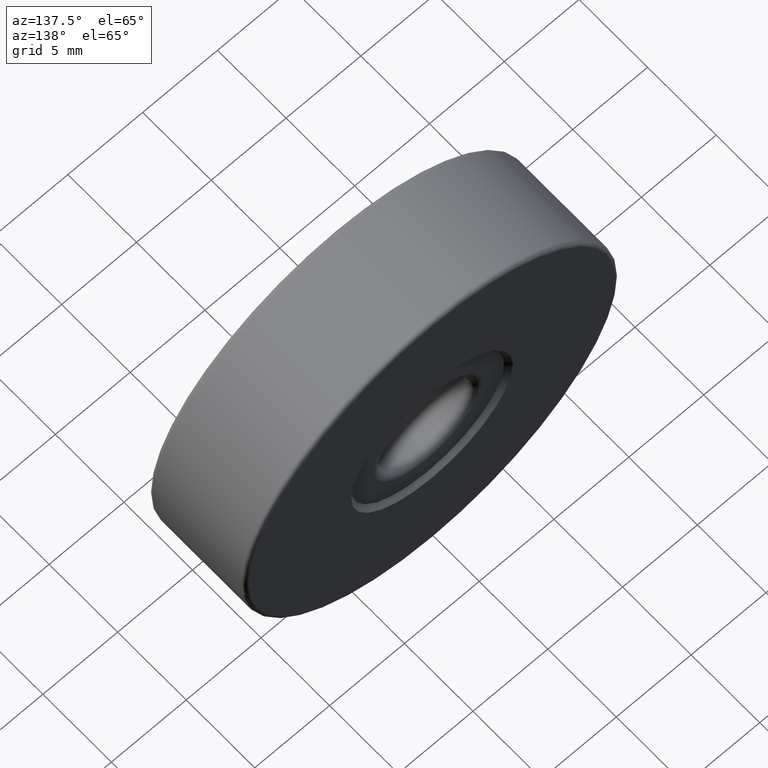
[diagram: clean part render]
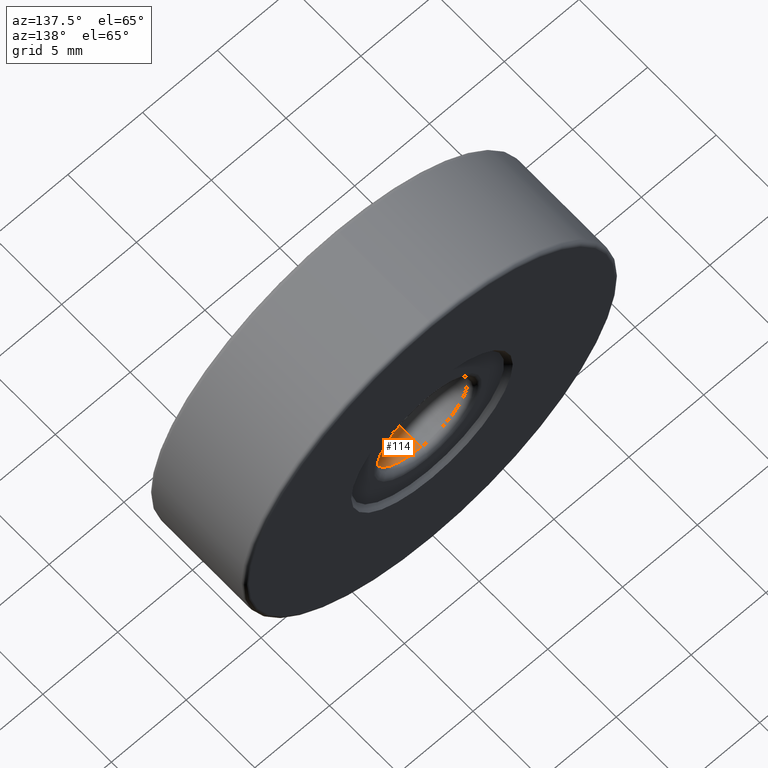
[diagram: same view with one face highlighted and labeled with its STEP entity id]
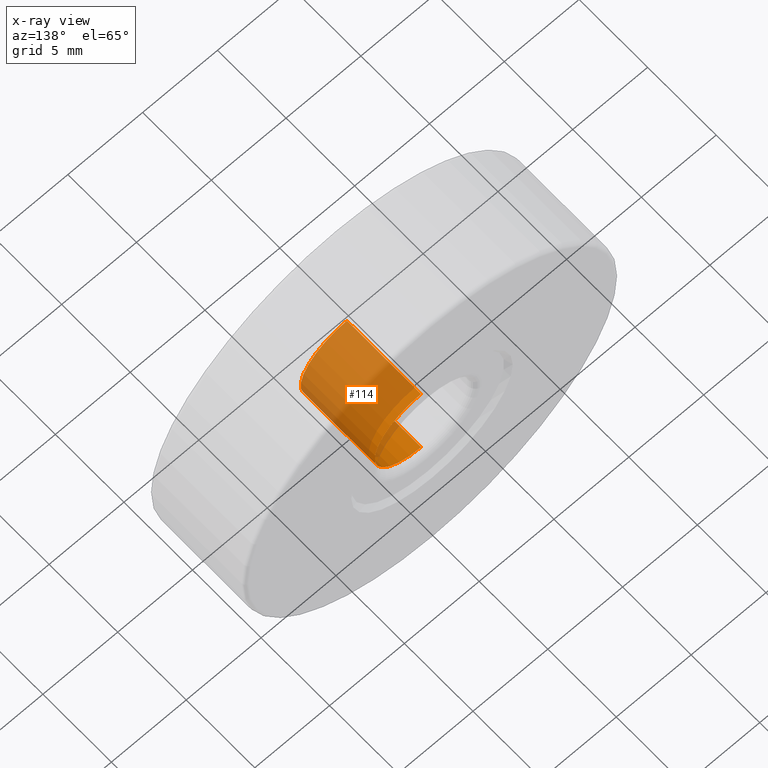
[diagram: x-ray of the same camera — body ghosted, the highlighted face saturated]
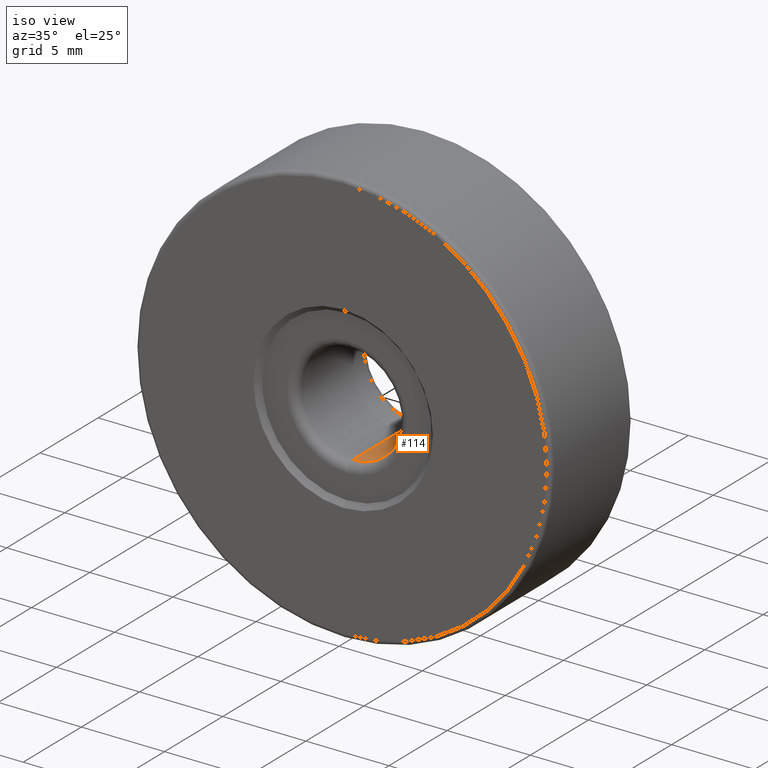
[diagram: same view with one face highlighted and labeled with its STEP entity id]
A machine part, auxiliary view. The second image highlights one B-rep face of the part: STEP entity #114.
The next image is the same camera in x-ray: the body ghosted, the highlighted face saturated — about 83% of this face is hidden behind the body in this view.
A second angle (iso view) of the same face is appended — the face is thin or edge-on in the first view.
In plain terms, the highlighted cylindrical surface (partial cylindrical patch) has radius 3.1 mm, axis along (-0, 1, -0).
Its self-contained STEP definition (entity closure, byte-faithful):
#30 = EDGE_CURVE ( 'NONE', #132, #259, #220, .T. ) ;
#35 = DIRECTION ( 'NONE',  ( 0.0000000000000000000, 1.000000000000000000, 0.0000000000000000000 ) ) ;
#52 = EDGE_CURVE ( 'NONE', #313, #259, #551, .T. ) ;
#75 = ORIENTED_EDGE ( 'NONE', *, *, #52, .T. ) ;
#114 = ADVANCED_FACE ( 'NONE', ( #146 ), #290, .F. ) ;
#125 = DIRECTION ( 'NONE',  ( 0.0000000000000000000, -1.000000000000000000, 0.0000000000000000000 ) ) ;
#132 = VERTEX_POINT ( 'NONE', #280 ) ;
#136 = AXIS2_PLACEMENT_3D ( 'NONE', #598, #35, #507 ) ;
#146 = FACE_OUTER_BOUND ( 'NONE', #165, .T. ) ;
#165 = EDGE_LOOP ( 'NONE', ( #204, #393, #587, #75 ) ) ;
#168 = CARTESIAN_POINT ( 'NONE',  ( -4.682026255059964726, -5.094975976998274980, 28.10000000000000142 ) ) ;
#180 = VECTOR ( 'NONE', #453, 1000.000000000000000 ) ;
#201 = CARTESIAN_POINT ( 'NONE',  ( -4.682026255059964726, -4.294975976998275158, 28.10000000000000142 ) ) ;
#204 = ORIENTED_EDGE ( 'NONE', *, *, #30, .F. ) ;
#220 = LINE ( 'NONE', #550, #394 ) ;
#228 = DIRECTION ( 'NONE',  ( -0.0000000000000000000, 1.000000000000000000, -0.0000000000000000000 ) ) ;
#259 = VERTEX_POINT ( 'NONE', #448 ) ;
#271 = VERTEX_POINT ( 'NONE', #201 ) ;
#278 = AXIS2_PLACEMENT_3D ( 'NONE', #445, #125, #360 ) ;
#280 = CARTESIAN_POINT ( 'NONE',  ( -4.682026255059964726, -4.294975976998275158, 21.90000000000000213 ) ) ;
#290 = CYLINDRICAL_SURFACE ( 'NONE', #465, 3.099999999999998757 ) ;
#313 = VERTEX_POINT ( 'NONE', #387 ) ;
#334 = DIRECTION ( 'NONE',  ( 0.0000000000000000000, 0.0000000000000000000, 1.000000000000000000 ) ) ;
#360 = DIRECTION ( 'NONE',  ( 0.0000000000000000000, 0.0000000000000000000, -1.000000000000000000 ) ) ;
#387 = CARTESIAN_POINT ( 'NONE',  ( -4.682026255059964726, 1.105024023001725864, 28.10000000000000142 ) ) ;
#388 = EDGE_CURVE ( 'NONE', #132, #271, #447, .T. ) ;
#393 = ORIENTED_EDGE ( 'NONE', *, *, #388, .T. ) ;
#394 = VECTOR ( 'NONE', #228, 1000.000000000000000 ) ;
#402 = EDGE_CURVE ( 'NONE', #271, #313, #416, .T. ) ;
#416 = LINE ( 'NONE', #168, #180 ) ;
#445 = CARTESIAN_POINT ( 'NONE',  ( -4.682026255059964726, -4.294975976998275158, 25.00000000000000000 ) ) ;
#447 = CIRCLE ( 'NONE', #278, 3.099999999999998757 ) ;
#448 = CARTESIAN_POINT ( 'NONE',  ( -4.682026255059964726, 1.105024023001725864, 21.90000000000000213 ) ) ;
#453 = DIRECTION ( 'NONE',  ( -0.0000000000000000000, 1.000000000000000000, -0.0000000000000000000 ) ) ;
#465 = AXIS2_PLACEMENT_3D ( 'NONE', #571, #470, #334 ) ;
#470 = DIRECTION ( 'NONE',  ( -0.0000000000000000000, 1.000000000000000000, -0.0000000000000000000 ) ) ;
#507 = DIRECTION ( 'NONE',  ( 0.0000000000000000000, 0.0000000000000000000, 1.000000000000000000 ) ) ;
#550 = CARTESIAN_POINT ( 'NONE',  ( -4.682026255059964726, -5.094975976998274980, 21.90000000000000213 ) ) ;
#551 = CIRCLE ( 'NONE', #136, 3.099999999999998757 ) ;
#571 = CARTESIAN_POINT ( 'NONE',  ( -4.682026255059964726, -5.094975976998274980, 25.00000000000000000 ) ) ;
#587 = ORIENTED_EDGE ( 'NONE', *, *, #402, .T. ) ;
#598 = CARTESIAN_POINT ( 'NONE',  ( -4.682026255059964726, 1.105024023001725864, 25.00000000000000000 ) ) ;